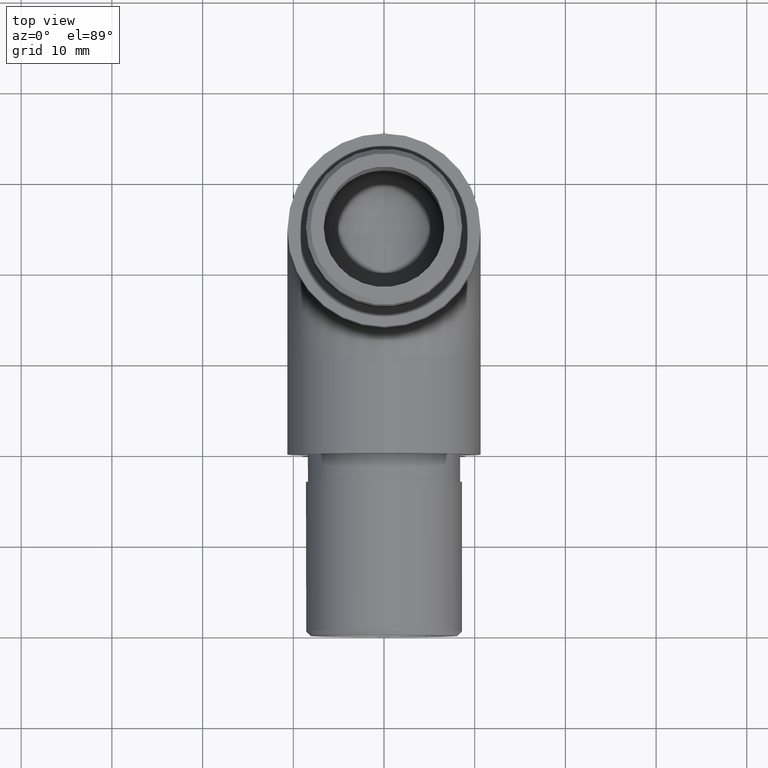
[diagram: clean part render]
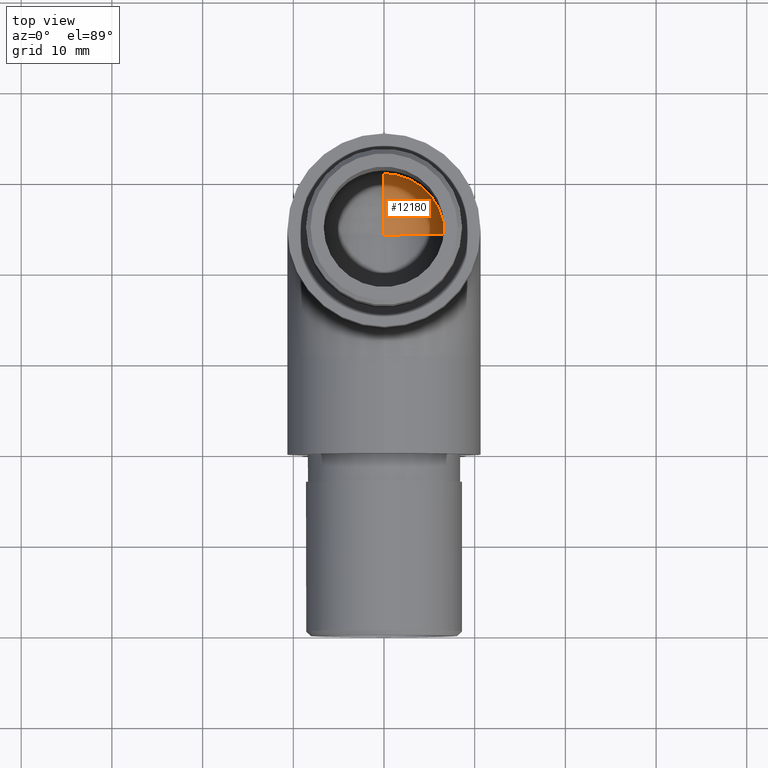
[diagram: same view with one face highlighted and labeled with its STEP entity id]
A machine part, top view. The second image highlights one B-rep face of the part: STEP entity #12180.
In plain terms, the highlighted spherical surface has radius 6.65 mm.
Its self-contained STEP definition (entity closure, byte-faithful):
#5 = ORIENTED_EDGE ( 'NONE', *, *, #11391, .F. ) ;
#624 = CARTESIAN_POINT ( 'NONE',  ( 1.734723475976807100E-015, 24.35000000000000500, 0.0000000000000000000 ) ) ;
#664 = AXIS2_PLACEMENT_3D ( 'NONE', #7500, #10507, #4437 ) ;
#763 = CARTESIAN_POINT ( 'NONE',  ( 6.650000000000002100, 24.35000000000000500, -1.734723475976807100E-015 ) ) ;
#888 = CARTESIAN_POINT ( 'NONE',  ( 3.359499689391704100E-015, 24.35000000000000500, -3.969771043126091000E-031 ) ) ;
#1005 = SPHERICAL_SURFACE ( 'NONE', #664, 6.649999999999999500 ) ;
#1675 = DIRECTION ( 'NONE',  ( -1.000000000000000000, 0.0000000000000000000, 2.443272501375785000E-016 ) ) ;
#2391 = EDGE_CURVE ( 'NONE', #11874, #6056, #6643, .T. ) ;
#2692 = DIRECTION ( 'NONE',  ( -2.443272501375785000E-016, -6.123233995736766000E-017, -1.000000000000000000 ) ) ;
#3973 = CARTESIAN_POINT ( 'NONE',  ( 1.734723475976807100E-015, 24.35000000000000500, 0.0000000000000000000 ) ) ;
#4098 = DIRECTION ( 'NONE',  ( 0.0000000000000000000, 0.0000000000000000000, -1.000000000000000000 ) ) ;
#4437 = DIRECTION ( 'NONE',  ( -2.443272501375785000E-016, 0.0000000000000000000, -1.000000000000000000 ) ) ;
#4628 = AXIS2_PLACEMENT_3D ( 'NONE', #3973, #12289, #4098 ) ;
#4760 = VERTEX_POINT ( 'NONE', #10420 ) ;
#4882 = DIRECTION ( 'NONE',  ( -2.443272501375785000E-016, 0.0000000000000000000, -1.000000000000000000 ) ) ;
#5166 = CARTESIAN_POINT ( 'NONE',  ( 1.327528415260312600E-015, 31.00000000000000400, 6.632589963631029900E-032 ) ) ;
#6056 = VERTEX_POINT ( 'NONE', #763 ) ;
#6609 = EDGE_LOOP ( 'NONE', ( #5, #13227, #8463 ) ) ;
#6643 = CIRCLE ( 'NONE', #7240, 6.649999999999999500 ) ;
#7240 = AXIS2_PLACEMENT_3D ( 'NONE', #624, #2692, #1675 ) ;
#7500 = CARTESIAN_POINT ( 'NONE',  ( 1.734723475976807100E-015, 24.35000000000000500, 0.0000000000000000000 ) ) ;
#7926 = CIRCLE ( 'NONE', #4628, 6.649999999999999500 ) ;
#8401 = FACE_OUTER_BOUND ( 'NONE', #6609, .T. ) ;
#8463 = ORIENTED_EDGE ( 'NONE', *, *, #2391, .F. ) ;
#9041 = AXIS2_PLACEMENT_3D ( 'NONE', #888, #11056, #4882 ) ;
#10420 = CARTESIAN_POINT ( 'NONE',  ( 1.734723475976807100E-015, 24.35000000000000500, -6.649999999999999500 ) ) ;
#10507 = DIRECTION ( 'NONE',  ( 0.0000000000000000000, 1.000000000000000000, 0.0000000000000000000 ) ) ;
#11056 = DIRECTION ( 'NONE',  ( 1.000000000000000000, 0.0000000000000000000, -2.443272501375785000E-016 ) ) ;
#11391 = EDGE_CURVE ( 'NONE', #4760, #11874, #11790, .T. ) ;
#11790 = CIRCLE ( 'NONE', #9041, 6.649999999999999500 ) ;
#11874 = VERTEX_POINT ( 'NONE', #5166 ) ;
#12018 = EDGE_CURVE ( 'NONE', #4760, #6056, #7926, .T. ) ;
#12180 = ADVANCED_FACE ( 'NONE', ( #8401 ), #1005, .F. ) ;
#12289 = DIRECTION ( 'NONE',  ( 0.0000000000000000000, -1.000000000000000000, 0.0000000000000000000 ) ) ;
#13227 = ORIENTED_EDGE ( 'NONE', *, *, #12018, .T. ) ;